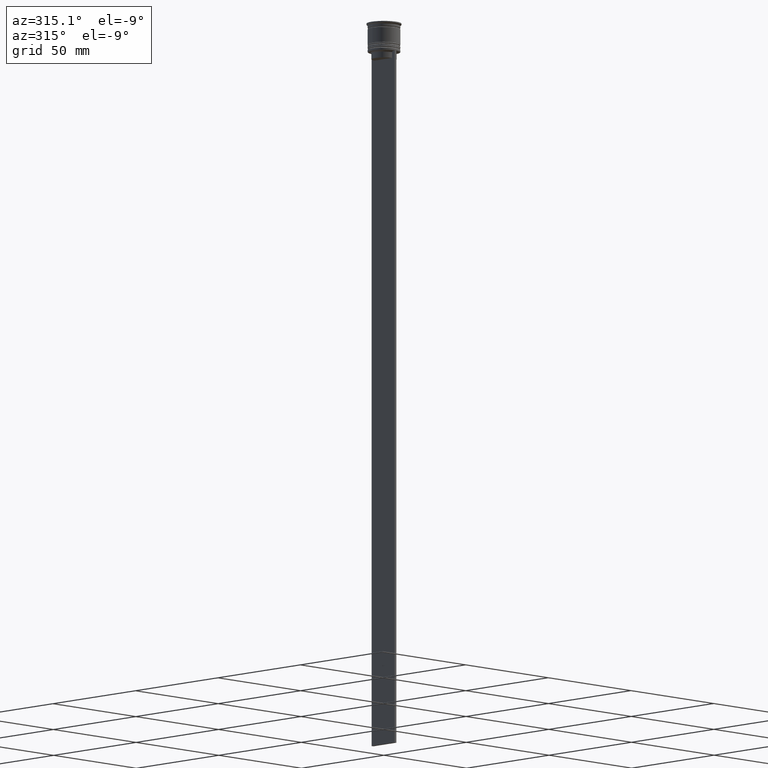
[diagram: clean part render]
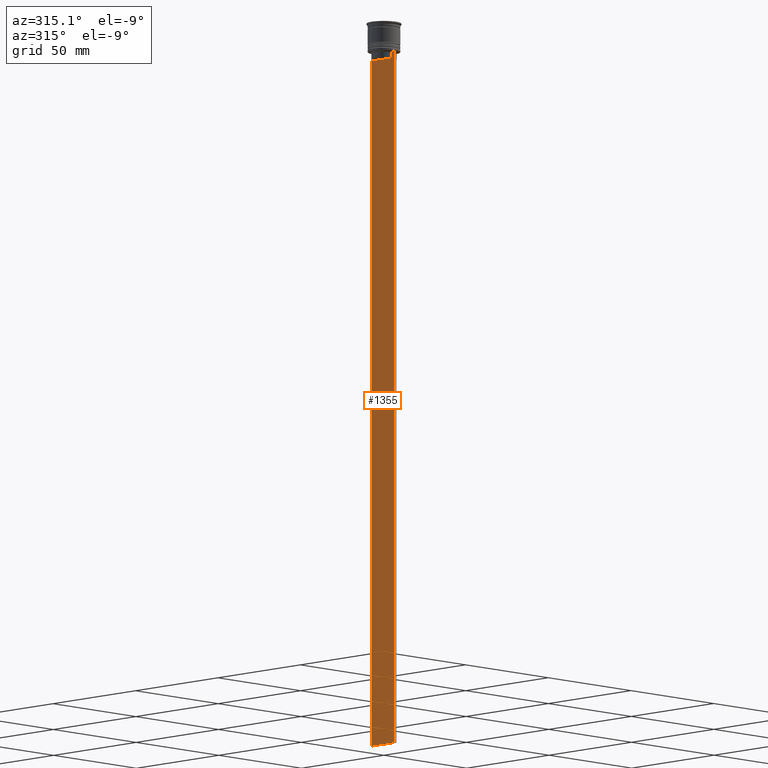
[diagram: same view with one face highlighted and labeled with its STEP entity id]
A machine part, auxiliary view. The second image highlights one B-rep face of the part: STEP entity #1355.
In plain terms, the highlighted planar face has unit normal (-1, 0, 0).
Its self-contained STEP definition (entity closure, byte-faithful):
#41 = CARTESIAN_POINT ( 'NONE',  ( -0.5000000000000000000, -6.999999999999997335, -12.50000000000000000 ) ) ;
#87 = CARTESIAN_POINT ( 'NONE',  ( -0.5000000000000000000, -6.999999999999997335, -12.50000000000000000 ) ) ;
#95 = ORIENTED_EDGE ( 'NONE', *, *, #378, .F. ) ;
#137 = VECTOR ( 'NONE', #2455, 1000.000000000000000 ) ;
#143 = VECTOR ( 'NONE', #1672, 1000.000000000000000 ) ;
#245 = DIRECTION ( 'NONE',  ( 0.000000000000000000, 1.000000000000000000, 0.000000000000000000 ) ) ;
#267 = CARTESIAN_POINT ( 'NONE',  ( -0.5000000000000000000, 5.376802023508029826, -13.00000000000000178 ) ) ;
#288 = VERTEX_POINT ( 'NONE', #2359 ) ;
#336 = CARTESIAN_POINT ( 'NONE',  ( -0.5000000000000000000, -6.999999999999997335, 1.535668847618198329 ) ) ;
#342 = VECTOR ( 'NONE', #1473, 1000.000000000000000 ) ;
#347 = EDGE_CURVE ( 'NONE', #288, #1351, #1750, .T. ) ;
#366 = EDGE_CURVE ( 'NONE', #977, #288, #1059, .T. ) ;
#378 = EDGE_CURVE ( 'NONE', #1212, #1638, #1250, .T. ) ;
#470 = DIRECTION ( 'NONE',  ( 0.000000000000000000, -1.000000000000000000, 0.000000000000000000 ) ) ;
#508 = ORIENTED_EDGE ( 'NONE', *, *, #1070, .F. ) ;
#552 = EDGE_CURVE ( 'NONE', #1152, #896, #2445, .T. ) ;
#579 = VECTOR ( 'NONE', #2219, 1000.000000000000000 ) ;
#609 = ORIENTED_EDGE ( 'NONE', *, *, #1680, .F. ) ;
#630 = CARTESIAN_POINT ( 'NONE',  ( -0.5000000000000000000, 5.711478846560141598, -12.66669470477064685 ) ) ;
#655 = CARTESIAN_POINT ( 'NONE',  ( -0.5000000000000000000, -5.376802023508029826, 0.000000000000000000 ) ) ;
#694 = VERTEX_POINT ( 'NONE', #1560 ) ;
#727 = ORIENTED_EDGE ( 'NONE', *, *, #1084, .F. ) ;
#794 = FACE_OUTER_BOUND ( 'NONE', #2404, .T. ) ;
#834 = CARTESIAN_POINT ( 'NONE',  ( -0.5000000000000000000, 5.878775382679629402, -12.50000000000000000 ) ) ;
#838 = EDGE_CURVE ( 'NONE', #694, #2389, #1760, .T. ) ;
#846 = CARTESIAN_POINT ( 'NONE',  ( -0.5000000000000000000, -5.711478856069293286, -12.66669469529570335 ) ) ;
#848 = ORIENTED_EDGE ( 'NONE', *, *, #1927, .F. ) ;
#874 = CARTESIAN_POINT ( 'NONE',  ( -0.5000000000000000000, -6.999999999999997335, -12.50000000000000000 ) ) ;
#895 = CARTESIAN_POINT ( 'NONE',  ( -0.5000000000000000000, 5.878775382679629402, -12.50000000000000000 ) ) ;
#896 = VERTEX_POINT ( 'NONE', #1401 ) ;
#904 = VECTOR ( 'NONE', #470, 1000.000000000000000 ) ;
#912 = ORIENTED_EDGE ( 'NONE', *, *, #838, .F. ) ;
#945 = VERTEX_POINT ( 'NONE', #1761 ) ;
#967 = DIRECTION ( 'NONE',  ( 0.000000000000000000, 0.000000000000000000, 1.000000000000000000 ) ) ;
#977 = VERTEX_POINT ( 'NONE', #2212 ) ;
#995 = LINE ( 'NONE', #1007, #1020 ) ;
#1007 = CARTESIAN_POINT ( 'NONE',  ( -0.5000000000000000000, -6.999999999999997335, -12.50000000000000000 ) ) ;
#1020 = VECTOR ( 'NONE', #1161, 1000.000000000000000 ) ;
#1044 = CARTESIAN_POINT ( 'NONE',  ( -0.5000000000000000000, 5.544156989057553275, -12.83336397825725861 ) ) ;
#1059 = LINE ( 'NONE', #655, #579 ) ;
#1062 = VECTOR ( 'NONE', #1263, 1000.000000000000000 ) ;
#1070 = EDGE_CURVE ( 'NONE', #1638, #1152, #2076, .T. ) ;
#1074 = CARTESIAN_POINT ( 'NONE',  ( -0.5000000000000000000, -6.999999999999997335, -12.50000000000000000 ) ) ;
#1084 = EDGE_CURVE ( 'NONE', #945, #2309, #2193, .T. ) ;
#1087 = ORIENTED_EDGE ( 'NONE', *, *, #347, .F. ) ;
#1120 = LINE ( 'NONE', #1074, #143 ) ;
#1152 = VERTEX_POINT ( 'NONE', #267 ) ;
#1161 = DIRECTION ( 'NONE',  ( 0.000000000000000000, -1.000000000000000000, 0.000000000000000000 ) ) ;
#1169 = DIRECTION ( 'NONE',  ( -1.000000000000000000, 0.000000000000000000, 0.000000000000000000 ) ) ;
#1182 = PLANE ( 'NONE',  #2233 ) ;
#1202 = CARTESIAN_POINT ( 'NONE',  ( -0.5000000000000000000, -6.999999999999997335, -312.5000000000000000 ) ) ;
#1212 = VERTEX_POINT ( 'NONE', #1684 ) ;
#1250 = LINE ( 'NONE', #87, #904 ) ;
#1257 = ORIENTED_EDGE ( 'NONE', *, *, #366, .F. ) ;
#1263 = DIRECTION ( 'NONE',  ( 0.000000000000000000, -1.000000000000000000, 0.000000000000000000 ) ) ;
#1297 = LINE ( 'NONE', #336, #342 ) ;
#1315 = EDGE_CURVE ( 'NONE', #896, #977, #1482, .T. ) ;
#1351 = VERTEX_POINT ( 'NONE', #1935 ) ;
#1354 = ORIENTED_EDGE ( 'NONE', *, *, #1356, .T. ) ;
#1355 = ADVANCED_FACE ( 'NONE', ( #794 ), #1182, .T. ) ;
#1356 = EDGE_CURVE ( 'NONE', #1676, #2389, #1925, .T. ) ;
#1400 = ORIENTED_EDGE ( 'NONE', *, *, #1315, .F. ) ;
#1401 = CARTESIAN_POINT ( 'NONE',  ( -0.5000000000000000000, 5.376802023508029826, -15.50000000000000000 ) ) ;
#1473 = DIRECTION ( 'NONE',  ( 0.000000000000000000, 0.000000000000000000, -1.000000000000000000 ) ) ;
#1482 = LINE ( 'NONE', #1555, #2152 ) ;
#1555 = CARTESIAN_POINT ( 'NONE',  ( -0.5000000000000000000, 5.400000000000003908, -15.50000000000000000 ) ) ;
#1560 = CARTESIAN_POINT ( 'NONE',  ( -0.5000000000000000000, -6.999999999999997335, -312.5000000000000000 ) ) ;
#1578 = VECTOR ( 'NONE', #245, 1000.000000000000000 ) ;
#1605 = CARTESIAN_POINT ( 'NONE',  ( -0.5000000000000000000, -5.878775382679629402, -12.50000000000000000 ) ) ;
#1638 = VERTEX_POINT ( 'NONE', #895 ) ;
#1672 = DIRECTION ( 'NONE',  ( 0.000000000000000000, -1.000000000000000000, 0.000000000000000000 ) ) ;
#1673 = ORIENTED_EDGE ( 'NONE', *, *, #2138, .F. ) ;
#1676 = VERTEX_POINT ( 'NONE', #1857 ) ;
#1677 = CARTESIAN_POINT ( 'NONE',  ( -0.5000000000000000000, 5.376802023508029826, 0.000000000000000000 ) ) ;
#1680 = EDGE_CURVE ( 'NONE', #1351, #945, #1120, .T. ) ;
#1684 = CARTESIAN_POINT ( 'NONE',  ( -0.5000000000000000000, 6.881860213634102053, -12.50000000000000000 ) ) ;
#1730 = DIRECTION ( 'NONE',  ( 0.000000000000000000, 0.000000000000000000, -1.000000000000000000 ) ) ;
#1750 = B_SPLINE_CURVE_WITH_KNOTS ( 'NONE', 3,
 ( #2399, #1807, #846, #1605 ),
 .UNSPECIFIED., .F., .F.,
 ( 4, 4 ),
 ( 0.02539176325380714666, 0.02610162431828674801 ),
 .UNSPECIFIED. ) ;
#1755 = CARTESIAN_POINT ( 'NONE',  ( -0.5000000000000000000, 7.000000000000002665, 1.535668847618198329 ) ) ;
#1760 = LINE ( 'NONE', #1202, #1578 ) ;
#1761 = CARTESIAN_POINT ( 'NONE',  ( -0.5000000000000000000, -6.881860213634102053, -12.50000000000000000 ) ) ;
#1806 = CARTESIAN_POINT ( 'NONE',  ( -0.5000000000000000000, 5.376802023508029826, -13.00000000000000178 ) ) ;
#1807 = CARTESIAN_POINT ( 'NONE',  ( -0.5000000000000000000, -5.544156999454441959, -12.83336396790503642 ) ) ;
#1857 = CARTESIAN_POINT ( 'NONE',  ( -0.5000000000000000000, 7.000000000000002665, -12.50000000000000000 ) ) ;
#1868 = VECTOR ( 'NONE', #1730, 1000.000000000000000 ) ;
#1925 = LINE ( 'NONE', #1755, #1868 ) ;
#1927 = EDGE_CURVE ( 'NONE', #1676, #1212, #995, .T. ) ;
#1935 = CARTESIAN_POINT ( 'NONE',  ( -0.5000000000000000000, -5.878775382679629402, -12.50000000000000000 ) ) ;
#1949 = CARTESIAN_POINT ( 'NONE',  ( -0.5000000000000000000, -6.999999999999997335, 1.535668847618198329 ) ) ;
#2003 = CARTESIAN_POINT ( 'NONE',  ( -0.5000000000000000000, 7.000000000000002665, -312.5000000000000000 ) ) ;
#2076 = B_SPLINE_CURVE_WITH_KNOTS ( 'NONE', 3,
 ( #834, #630, #1044, #1806 ),
 .UNSPECIFIED., .F., .F.,
 ( 4, 4 ),
 ( 0.01003009312103698807, 0.01073859663834952557 ),
 .UNSPECIFIED. ) ;
#2138 = EDGE_CURVE ( 'NONE', #2309, #694, #1297, .T. ) ;
#2152 = VECTOR ( 'NONE', #2154, 1000.000000000000000 ) ;
#2154 = DIRECTION ( 'NONE',  ( 0.000000000000000000, -1.000000000000000000, 0.000000000000000000 ) ) ;
#2193 = LINE ( 'NONE', #874, #1062 ) ;
#2212 = CARTESIAN_POINT ( 'NONE',  ( -0.5000000000000000000, -5.376802023508029826, -15.50000000000000000 ) ) ;
#2219 = DIRECTION ( 'NONE',  ( -0.000000000000000000, -0.000000000000000000, 1.000000000000000000 ) ) ;
#2233 = AXIS2_PLACEMENT_3D ( 'NONE', #1949, #1169, #967 ) ;
#2309 = VERTEX_POINT ( 'NONE', #41 ) ;
#2359 = CARTESIAN_POINT ( 'NONE',  ( -0.5000000000000000000, -5.376802023508029826, -13.00000000000000178 ) ) ;
#2389 = VERTEX_POINT ( 'NONE', #2003 ) ;
#2399 = CARTESIAN_POINT ( 'NONE',  ( -0.5000000000000000000, -5.376802023508029826, -13.00000000000000178 ) ) ;
#2404 = EDGE_LOOP ( 'NONE', ( #508, #95, #848, #1354, #912, #1673, #727, #609, #1087, #1257, #1400, #2418 ) ) ;
#2418 = ORIENTED_EDGE ( 'NONE', *, *, #552, .F. ) ;
#2445 = LINE ( 'NONE', #1677, #137 ) ;
#2455 = DIRECTION ( 'NONE',  ( 0.000000000000000000, 0.000000000000000000, -1.000000000000000000 ) ) ;